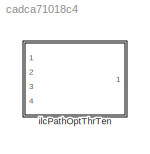
MODEL slx_cadca71018c4
KIND library
CONFIG AbsTol = auto
CONFIG EnableMultiTasking = off
CONFIG FixedStep = auto
CONFIG MaxStep = auto
CONFIG MinStep = auto
CONFIG RelTol = 1e-3
CONFIG SampleTimeConstraint = Unconstrained
CONFIG SolverName = VariableStepAuto
CONFIG StartTime = 0.0
CONFIG StopTime = 10.0
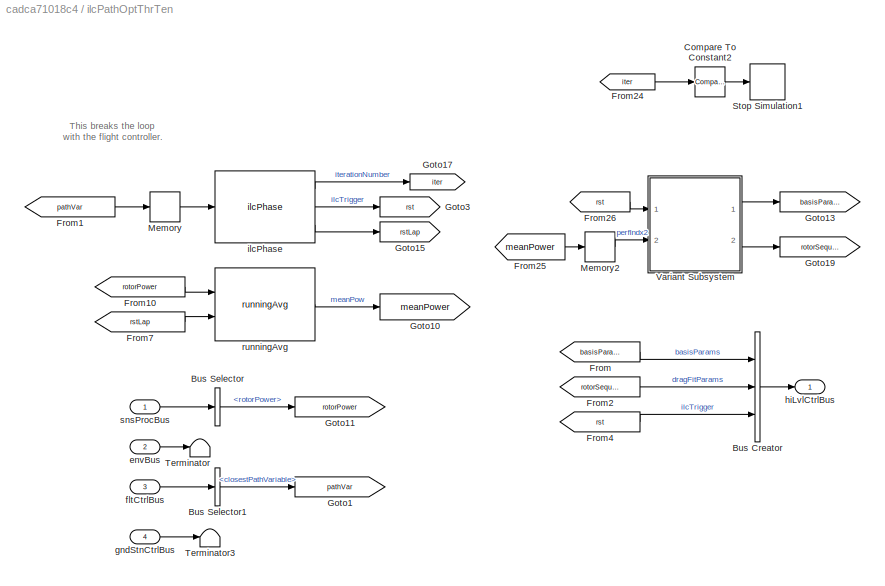
BLOCK [SubSystem] ilcPathOptThrTen
  InitFcn = initializeBussesFromBlock(gcb)
  LoadFcn = initializeBussesFromBlock(gcb)
  MinAlgLoopOccurrences = on
  Ports = [4, 1]
  RequestExecContextInheritance = off
  StartFcn = initializeBussesFromBlock(gcb)
BLOCK [BusCreator] ilcPathOptThrTen/Bus Creator
  DisplayOption = bar
  InheritFromInputs = on
  Inputs = 3
  OutDataTypeStr = Bus: hiLvlCtrlBus
  Ports = [3, 1]
BLOCK [BusSelector] ilcPathOptThrTen/Bus Selector
  OutputSignals = rotorPower
  Ports = [1, 1]
BLOCK [BusSelector] ilcPathOptThrTen/Bus Selector1
  OutputSignals = closestPathVariable
  Ports = [1, 1]
BLOCK [Reference] ilcPathOptThrTen/Compare To Constant2  REF=simulink/Logic and Bit
Operations/Compare
To Constant
  Ports = [1, 1]
  SourceBlock = simulink/Logic and Bit\nOperations/Compare\nTo Constant
  SourceProductBaseCode = SL
  SourceType = Compare To Constant
BLOCK [From] ilcPathOptThrTen/From
  GotoTag = basisParams
BLOCK [From] ilcPathOptThrTen/From1
  GotoTag = pathVar
BLOCK [From] ilcPathOptThrTen/From10
  GotoTag = rotorPower
BLOCK [From] ilcPathOptThrTen/From2
  GotoTag = rotorSequence
BLOCK [From] ilcPathOptThrTen/From24
  GotoTag = iter
BLOCK [From] ilcPathOptThrTen/From25
  GotoTag = meanPower
BLOCK [From] ilcPathOptThrTen/From26
  GotoTag = rst
BLOCK [From] ilcPathOptThrTen/From4
  GotoTag = rst
BLOCK [From] ilcPathOptThrTen/From7
  GotoTag = rstLap
BLOCK [Goto] ilcPathOptThrTen/Goto1
  GotoTag = pathVar
BLOCK [Goto] ilcPathOptThrTen/Goto10
  GotoTag = meanPower
BLOCK [Goto] ilcPathOptThrTen/Goto11
  GotoTag = rotorPower
BLOCK [Goto] ilcPathOptThrTen/Goto13
  GotoTag = basisParams
BLOCK [Goto] ilcPathOptThrTen/Goto15
  GotoTag = rstLap
BLOCK [Goto] ilcPathOptThrTen/Goto17
  GotoTag = iter
BLOCK [Goto] ilcPathOptThrTen/Goto19
  GotoTag = rotorSequence
BLOCK [Goto] ilcPathOptThrTen/Goto3
  GotoTag = rst
BLOCK [Memory] ilcPathOptThrTen/Memory
BLOCK [Memory] ilcPathOptThrTen/Memory2
BLOCK [Stop] ilcPathOptThrTen/Stop Simulation1
BLOCK [Terminator] ilcPathOptThrTen/Terminator
BLOCK [Terminator] ilcPathOptThrTen/Terminator3
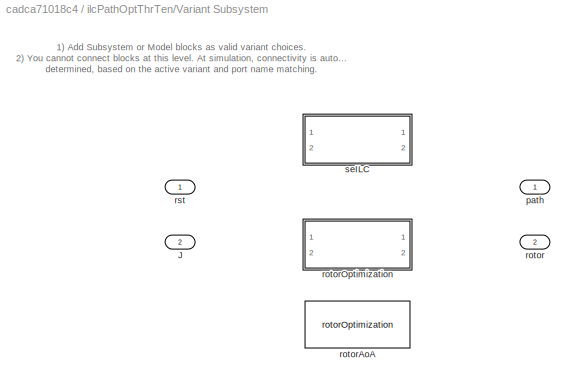
BLOCK [SubSystem] ilcPathOptThrTen/Variant Subsystem
  Ports = [2, 2]
  RequestExecContextInheritance = off
  Variant = on
BLOCK [Inport] ilcPathOptThrTen/Variant Subsystem/J
  Port = 2
BLOCK [Outport] ilcPathOptThrTen/Variant Subsystem/path
BLOCK [Outport] ilcPathOptThrTen/Variant Subsystem/rotor
  Port = 2
BLOCK [Reference] ilcPathOptThrTen/Variant Subsystem/rotorAoA  REF=$bdroot/ilcPathOptThrTen/Variant Subsystem/rotorOptimization
  Ports = [2, 2]
  SourceBlock = $bdroot/ilcPathOptThrTen/Variant Subsystem/rotorOptimization
  SourceType = SubSystem
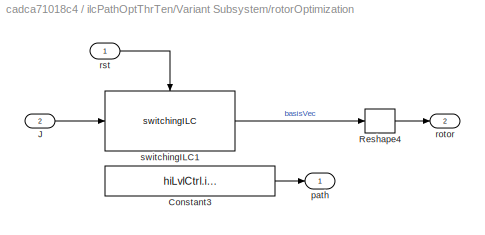
BLOCK [SubSystem] ilcPathOptThrTen/Variant Subsystem/rotorOptimization
  Ports = [2, 2]
  RequestExecContextInheritance = off
  VariantControl = numel(hiLvlCtrl.parameterSpace)==1
BLOCK [Constant] ilcPathOptThrTen/Variant Subsystem/rotorOptimization/Constant3
  Value = hiLvlCtrl.initBasisParams.Value
BLOCK [Inport] ilcPathOptThrTen/Variant Subsystem/rotorOptimization/J
  Port = 2
BLOCK [Reshape] ilcPathOptThrTen/Variant Subsystem/rotorOptimization/Reshape4
  Ports = [1, 1]
BLOCK [Outport] ilcPathOptThrTen/Variant Subsystem/rotorOptimization/path
BLOCK [Outport] ilcPathOptThrTen/Variant Subsystem/rotorOptimization/rotor
  Port = 2
BLOCK [Inport] ilcPathOptThrTen/Variant Subsystem/rotorOptimization/rst
BLOCK [Reference] ilcPathOptThrTen/Variant Subsystem/rotorOptimization/switchingILC1  REF=ilcPhaseSwitching_cl/switchingILC
  Ports = [1, 1, 0, 1]
  SourceBlock = ilcPhaseSwitching_cl/switchingILC
BLOCK [Inport] ilcPathOptThrTen/Variant Subsystem/rst
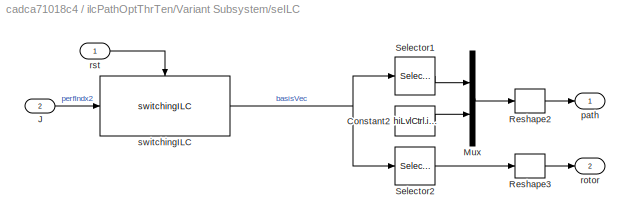
BLOCK [SubSystem] ilcPathOptThrTen/Variant Subsystem/seILC
  Ports = [2, 2]
  RequestExecContextInheritance = off
  VariantControl = (default)
BLOCK [Constant] ilcPathOptThrTen/Variant Subsystem/seILC/Constant2
  Value = hiLvlCtrl.initBasisParams.Value(3:5)
BLOCK [Inport] ilcPathOptThrTen/Variant Subsystem/seILC/J
  Port = 2
BLOCK [Mux] ilcPathOptThrTen/Variant Subsystem/seILC/Mux
  DisplayOption = bar
  Inputs = 2
  Ports = [2, 1]
BLOCK [Reshape] ilcPathOptThrTen/Variant Subsystem/seILC/Reshape2
  Ports = [1, 1]
BLOCK [Reshape] ilcPathOptThrTen/Variant Subsystem/seILC/Reshape3
  Ports = [1, 1]
BLOCK [Selector] ilcPathOptThrTen/Variant Subsystem/seILC/Selector1
  IndexOptions = Index vector (dialog)
  Indices = [1 2]
  InputPortWidth = 12
  OutputSizes = 1
  Ports = [1, 1]
BLOCK [Selector] ilcPathOptThrTen/Variant Subsystem/seILC/Selector2
  IndexOptions = Index vector (dialog)
  Indices = [3:12]
  InputPortWidth = 12
  OutputSizes = 1
  Ports = [1, 1]
BLOCK [Outport] ilcPathOptThrTen/Variant Subsystem/seILC/path
BLOCK [Outport] ilcPathOptThrTen/Variant Subsystem/seILC/rotor
  Port = 2
BLOCK [Inport] ilcPathOptThrTen/Variant Subsystem/seILC/rst
BLOCK [Reference] ilcPathOptThrTen/Variant Subsystem/seILC/switchingILC  REF=ilcPhaseSwitching_cl/switchingILC
  Ports = [1, 1, 0, 1]
  SourceBlock = ilcPhaseSwitching_cl/switchingILC
BLOCK [Inport] ilcPathOptThrTen/envBus
  OutDataTypeStr = Bus: envBus
  Port = 2
BLOCK [Inport] ilcPathOptThrTen/fltCtrlBus
  OutDataTypeStr = Bus: fltCtrlBus
  Port = 3
BLOCK [Inport] ilcPathOptThrTen/gndStnCtrlBus
  OutDataTypeStr = Bus: gndStnCtrlBus
  Port = 4
BLOCK [Outport] ilcPathOptThrTen/hiLvlCtrlBus
  OutDataTypeStr = Bus: hiLvlCtrlBus
  VectorParamsAs1DForOutWhenUnconnected = off
BLOCK [Reference] ilcPathOptThrTen/ilcPhase  REF=ilcPhase_cl/ilcPhase
  Ports = [1, 3]
  SourceBlock = ilcPhase_cl/ilcPhase
BLOCK [Reference] ilcPathOptThrTen/runningAvg  REF=runningAvg_ul/runningAvg
  Ports = [2, 1]
  SourceBlock = runningAvg_ul/runningAvg
  SourceType = SubSystem
BLOCK [Inport] ilcPathOptThrTen/snsProcBus
  OutDataTypeStr = Bus: sensorsProcessingBus
ANNOTATION ilcPathOptThrTen: This breaks the loop with the flight controller.
ANNOTATION ilcPathOptThrTen/Variant Subsystem: 1) Add Subsystem or Model blocks as valid variant choices. 2) You cannot connect blocks at this level. At simulation, connectivity is automatically determined, based on the active variant and port name matching.
LINE ilcPathOptThrTen/Bus Creator:1 -> ilcPathOptThrTen/hiLvlCtrlBus:1
LINE ilcPathOptThrTen/Bus Selector1:1 -> ilcPathOptThrTen/Goto1:1
LINE ilcPathOptThrTen/Bus Selector:1 -> ilcPathOptThrTen/Goto11:1
LINE ilcPathOptThrTen/Compare To Constant2:1 -> ilcPathOptThrTen/Stop Simulation1:1
LINE ilcPathOptThrTen/From10:1 -> ilcPathOptThrTen/runningAvg:1
LINE ilcPathOptThrTen/From1:1 -> ilcPathOptThrTen/Memory:1
LINE ilcPathOptThrTen/From24:1 -> ilcPathOptThrTen/Compare To Constant2:1
LINE ilcPathOptThrTen/From25:1 -> ilcPathOptThrTen/Memory2:1
LINE ilcPathOptThrTen/From26:1 -> ilcPathOptThrTen/Variant Subsystem:1
LINE ilcPathOptThrTen/From2:1 -> ilcPathOptThrTen/Bus Creator:2
LINE ilcPathOptThrTen/From4:1 -> ilcPathOptThrTen/Bus Creator:3
LINE ilcPathOptThrTen/From7:1 -> ilcPathOptThrTen/runningAvg:2
LINE ilcPathOptThrTen/From:1 -> ilcPathOptThrTen/Bus Creator:1
LINE ilcPathOptThrTen/Memory2:1 -> ilcPathOptThrTen/Variant Subsystem:2
LINE ilcPathOptThrTen/Memory:1 -> ilcPathOptThrTen/ilcPhase:1
LINE ilcPathOptThrTen/Variant Subsystem/rotorOptimization/Constant3:1 -> ilcPathOptThrTen/Variant Subsystem/rotorOptimization/path:1
LINE ilcPathOptThrTen/Variant Subsystem/rotorOptimization/J:1 -> ilcPathOptThrTen/Variant Subsystem/rotorOptimization/switchingILC1:1
LINE ilcPathOptThrTen/Variant Subsystem/rotorOptimization/Reshape4:1 -> ilcPathOptThrTen/Variant Subsystem/rotorOptimization/rotor:1
LINE ilcPathOptThrTen/Variant Subsystem/rotorOptimization/rst:1 -> ilcPathOptThrTen/Variant Subsystem/rotorOptimization/switchingILC1:trigger
LINE ilcPathOptThrTen/Variant Subsystem/rotorOptimization/switchingILC1:1 -> ilcPathOptThrTen/Variant Subsystem/rotorOptimization/Reshape4:1
LINE ilcPathOptThrTen/Variant Subsystem/seILC/Constant2:1 -> ilcPathOptThrTen/Variant Subsystem/seILC/Mux:2
LINE ilcPathOptThrTen/Variant Subsystem/seILC/J:1 -> ilcPathOptThrTen/Variant Subsystem/seILC/switchingILC:1
LINE ilcPathOptThrTen/Variant Subsystem/seILC/Mux:1 -> ilcPathOptThrTen/Variant Subsystem/seILC/Reshape2:1
LINE ilcPathOptThrTen/Variant Subsystem/seILC/Reshape2:1 -> ilcPathOptThrTen/Variant Subsystem/seILC/path:1
LINE ilcPathOptThrTen/Variant Subsystem/seILC/Reshape3:1 -> ilcPathOptThrTen/Variant Subsystem/seILC/rotor:1
LINE ilcPathOptThrTen/Variant Subsystem/seILC/Selector1:1 -> ilcPathOptThrTen/Variant Subsystem/seILC/Mux:1
LINE ilcPathOptThrTen/Variant Subsystem/seILC/Selector2:1 -> ilcPathOptThrTen/Variant Subsystem/seILC/Reshape3:1
LINE ilcPathOptThrTen/Variant Subsystem/seILC/rst:1 -> ilcPathOptThrTen/Variant Subsystem/seILC/switchingILC:trigger
NET ilcPathOptThrTen/Variant Subsystem/seILC/switchingILC:1 -> ilcPathOptThrTen/Variant Subsystem/seILC/Selector1:1, ilcPathOptThrTen/Variant Subsystem/seILC/Selector2:1
LINE ilcPathOptThrTen/Variant Subsystem:1 -> ilcPathOptThrTen/Goto13:1
LINE ilcPathOptThrTen/Variant Subsystem:2 -> ilcPathOptThrTen/Goto19:1
LINE ilcPathOptThrTen/envBus:1 -> ilcPathOptThrTen/Terminator:1
LINE ilcPathOptThrTen/fltCtrlBus:1 -> ilcPathOptThrTen/Bus Selector1:1
LINE ilcPathOptThrTen/gndStnCtrlBus:1 -> ilcPathOptThrTen/Terminator3:1
LINE ilcPathOptThrTen/ilcPhase:1 -> ilcPathOptThrTen/Goto17:1
LINE ilcPathOptThrTen/ilcPhase:2 -> ilcPathOptThrTen/Goto3:1
LINE ilcPathOptThrTen/ilcPhase:3 -> ilcPathOptThrTen/Goto15:1
LINE ilcPathOptThrTen/runningAvg:1 -> ilcPathOptThrTen/Goto10:1
LINE ilcPathOptThrTen/snsProcBus:1 -> ilcPathOptThrTen/Bus Selector:1
note: NET lines group one-source signal fan-out (src -> all destinations, sorted); 1:1 wires keep LINE
